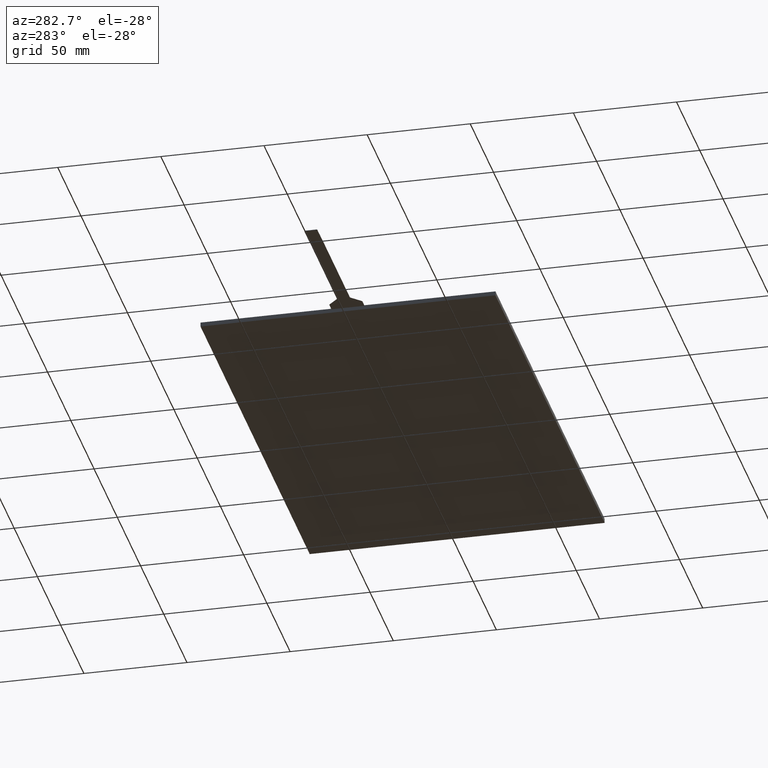
[diagram: clean part render]
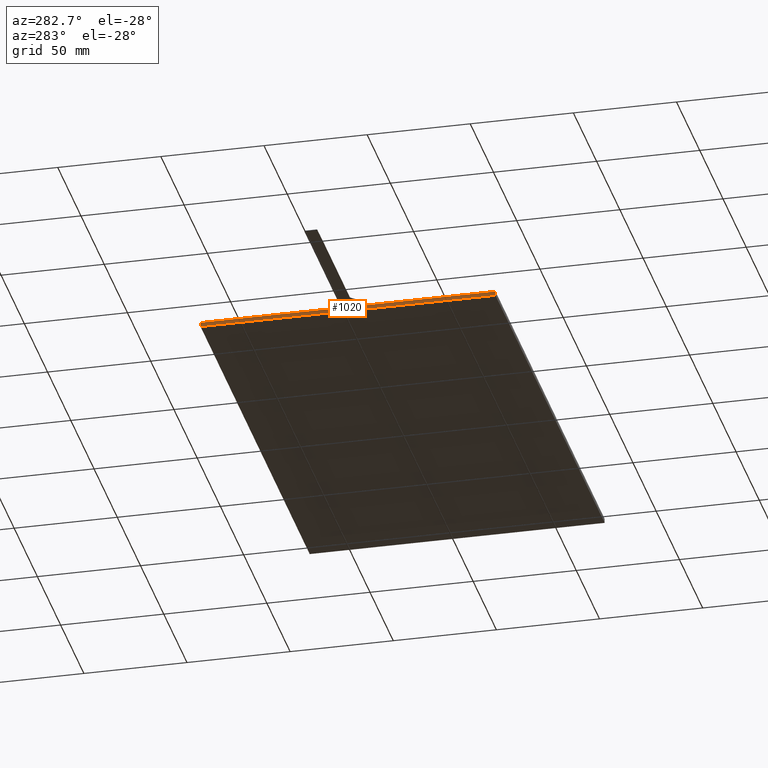
[diagram: same view with one face highlighted and labeled with its STEP entity id]
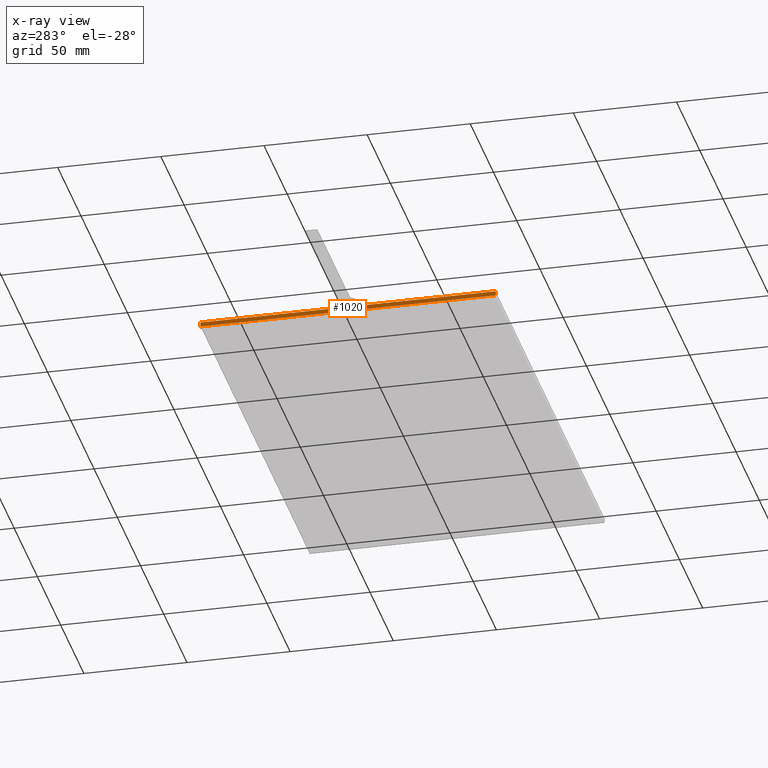
[diagram: x-ray of the same camera — body ghosted, the highlighted face saturated]
A machine part, auxiliary view. The second image highlights one B-rep face of the part: STEP entity #1020.
The next image is the same camera in x-ray: the body ghosted, the highlighted face saturated — about 0% of this face is hidden behind the body in this view.
In plain terms, the highlighted planar face has unit normal (-1, -0, 0).
Its self-contained STEP definition (entity closure, byte-faithful):
#48=FACE_BOUND('',#193,.T.);
#88=PLANE('',#1103);
#139=FACE_OUTER_BOUND('',#192,.T.);
#192=EDGE_LOOP('',(#941,#942,#943,#944));
#193=EDGE_LOOP('',(#945,#946,#947,#948));
#207=LINE('',#1393,#333);
#223=LINE('',#1430,#349);
#225=LINE('',#1434,#351);
#288=LINE('',#1566,#414);
#314=LINE('',#1623,#440);
#317=LINE('',#1629,#443);
#318=LINE('',#1631,#444);
#319=LINE('',#1632,#445);
#333=VECTOR('',#1133,10.);
#349=VECTOR('',#1167,10.);
#351=VECTOR('',#1171,10.);
#414=VECTOR('',#1290,10.);
#440=VECTOR('',#1340,10.);
#443=VECTOR('',#1345,10.);
#444=VECTOR('',#1346,10.);
#445=VECTOR('',#1347,10.);
#475=VERTEX_POINT('',#1390);
#476=VERTEX_POINT('',#1392);
#488=VERTEX_POINT('',#1428);
#489=VERTEX_POINT('',#1432);
#548=VERTEX_POINT('',#1620);
#549=VERTEX_POINT('',#1622);
#551=VERTEX_POINT('',#1628);
#552=VERTEX_POINT('',#1630);
#568=EDGE_CURVE('',#476,#475,#207,.T.);
#587=EDGE_CURVE('',#475,#488,#223,.T.);
#589=EDGE_CURVE('',#488,#489,#225,.T.);
#656=EDGE_CURVE('',#489,#476,#288,.T.);
#682=EDGE_CURVE('',#548,#549,#314,.T.);
#685=EDGE_CURVE('',#548,#551,#317,.T.);
#686=EDGE_CURVE('',#552,#551,#318,.T.);
#687=EDGE_CURVE('',#549,#552,#319,.T.);
#941=ORIENTED_EDGE('',*,*,#682,.F.);
#942=ORIENTED_EDGE('',*,*,#685,.T.);
#943=ORIENTED_EDGE('',*,*,#686,.F.);
#944=ORIENTED_EDGE('',*,*,#687,.F.);
#945=ORIENTED_EDGE('',*,*,#587,.T.);
#946=ORIENTED_EDGE('',*,*,#589,.T.);
#947=ORIENTED_EDGE('',*,*,#656,.T.);
#948=ORIENTED_EDGE('',*,*,#568,.T.);
#1020=ADVANCED_FACE('',(#139,#48),#88,.T.);
#1103=AXIS2_PLACEMENT_3D('',#1627,#1343,#1344);
#1133=DIRECTION('',(2.48441516000035E-16,-1.,0.));
#1167=DIRECTION('',(0.,0.,-1.));
#1171=DIRECTION('',(-2.48441516000035E-16,1.,0.));
#1290=DIRECTION('',(0.,0.,1.));
#1340=DIRECTION('',(2.48441516000035E-16,-1.,0.));
#1343=DIRECTION('center_axis',(-1.,-2.48441516000035E-16,0.));
#1344=DIRECTION('ref_axis',(-2.48441516000035E-16,1.,0.));
#1345=DIRECTION('',(0.,0.,-1.));
#1346=DIRECTION('',(-2.48441516000035E-16,1.,0.));
#1347=DIRECTION('',(0.,0.,-1.));
#1390=CARTESIAN_POINT('',(-119.31,-8.00999999999995,-0.188));
#1392=CARTESIAN_POINT('',(-119.31,8.04000000000008,-0.188));
#1393=CARTESIAN_POINT('',(-119.31,-35.7424999999999,-0.188));
#1428=CARTESIAN_POINT('',(-119.31,-8.00999999999995,-0.288));
#1430=CARTESIAN_POINT('',(-119.31,-8.00999999999995,-0.094));
#1432=CARTESIAN_POINT('',(-119.31,8.04000000000007,-0.288));
#1434=CARTESIAN_POINT('',(-119.31,-35.7424999999999,-0.288));
#1566=CARTESIAN_POINT('',(-119.31,8.04000000000008,-0.094));
#1620=CARTESIAN_POINT('',(-119.31,71.5000000000001,0.));
#1622=CARTESIAN_POINT('',(-119.31,-71.4999999999999,0.));
#1623=CARTESIAN_POINT('',(-119.31,71.5000000000001,0.));
#1627=CARTESIAN_POINT('Origin',(-119.31,-71.4999999999999,0.));
#1628=CARTESIAN_POINT('',(-119.31,71.5000000000001,-2.1));
#1629=CARTESIAN_POINT('',(-119.31,71.5000000000001,0.));
#1630=CARTESIAN_POINT('',(-119.31,-71.4999999999999,-2.1));
#1631=CARTESIAN_POINT('',(-119.31,71.5000000000001,-2.1));
#1632=CARTESIAN_POINT('',(-119.31,-71.4999999999999,0.));